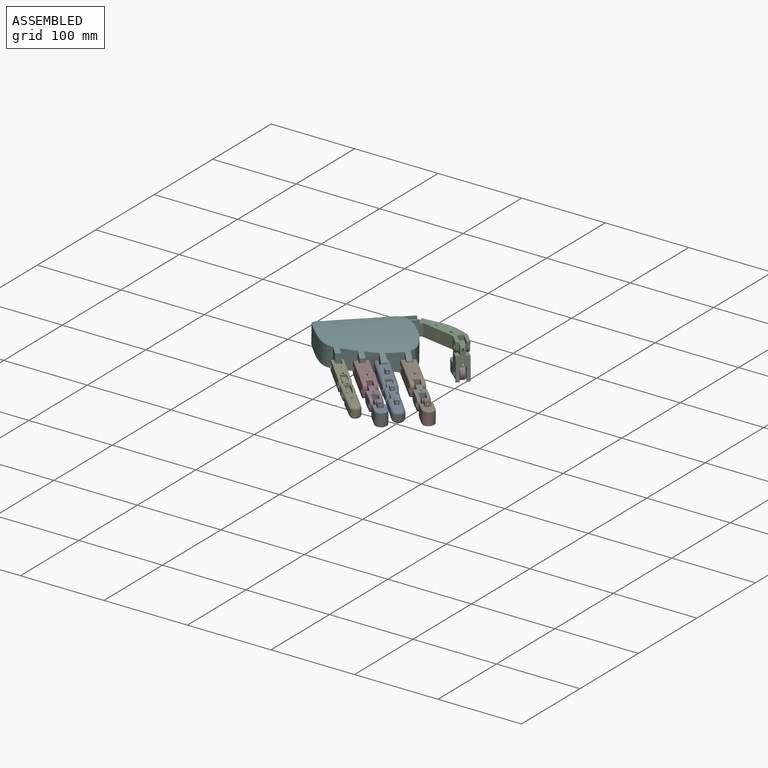
[diagram: assembled view]
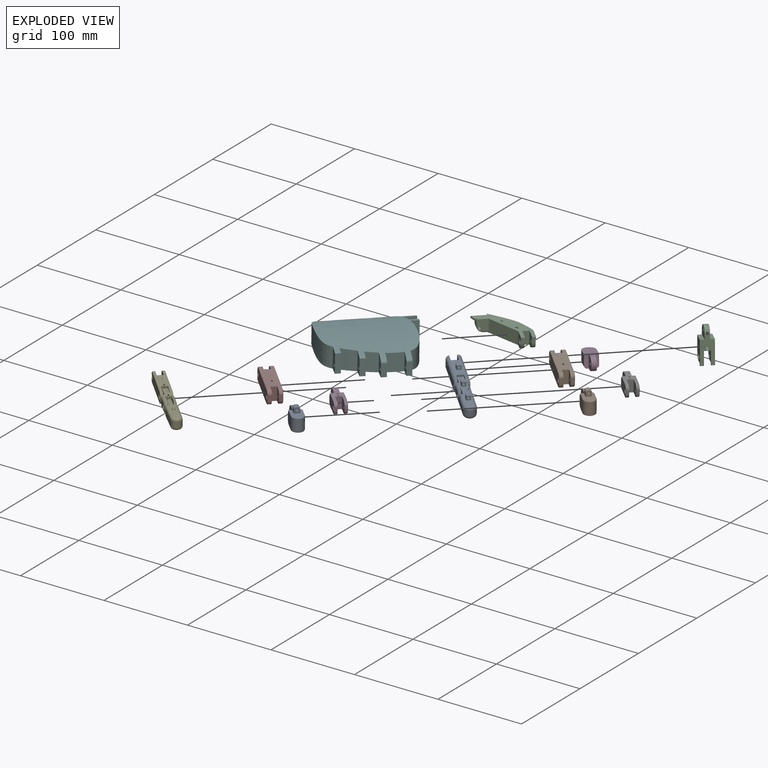
[diagram: exploded view]
GUIDED TOUR — MATED ASSEMBLY WITH SUBASSEMBLIES (Onshape document 58f4713bba5ead0ff602a4fa, AutoMate assembly 58f4713bba5ead0ff602a4fa_5b2b427a5dbaa598ef088df7_5e958202b57f63572089bb10_default)

This assembly has 16 component occurrences arranged in 12 top-level units: 10 individual components plus 2 subassemblies (S0, S1). The tour has two levels: first the top level, where each subassembly is treated as one rigid unit; then each subassembly is toured internally in its own section (nesting deeper than one subassembly level is flattened into its subassembly's section).

Components are labeled P0..P15 across the whole record; subassembly units are labeled S0..S1. A mate is a constraint between two units; its type names the relative motion it leaves free:
  REVOLUTE — leaves rotation about the listed axis free (a hinge).
Axis/direction vectors are unit vectors and 'through' points are millimeter coordinates, both in the assembly's world frame.

TOP-LEVEL MATES (between units; each subassembly's internal mates are listed in its own section)
  1. REVOLUTE "Revolute 3": P6 <-> P2, axis (-0.707, -0.707, 0.011) through (-216.11, -60.89, -3.54) mm
  2. REVOLUTE "Revolute 1": P9 <-> P14, axis (0.707, 0.707, -0.011) through (-218.39, -124.71, -5.03) mm
  3. REVOLUTE "Revolute 9": P3 <-> P4, axis (-0.707, -0.707, 0.008) through (-193.27, 8.58, -29.24) mm
  4. REVOLUTE "Revolute 1": P2 <-> P7, axis (0.707, 0.707, -0.011) through (-181.84, -95.89, -5.03) mm
  5. REVOLUTE "Revolute 4": P6 <-> P9, axis (0.707, 0.707, -0.011) through (-248.04, -85.13, -3.03) mm
  6. REVOLUTE "Revolute 5": S1 <-> P6, axis (0.707, 0.707, -0.011) through (-275.56, -99.13, -2.62) mm
  7. REVOLUTE "Revolute 2": P12 <-> P7, axis (-0.707, -0.707, 0.011) through (-156.74, -120.28, -5.03) mm
  8. REVOLUTE "Revolute 6": S0 <-> P6, axis (-0.707, -0.707, 0.011) through (-229.83, -74.61, -3.31) mm
  9. REVOLUTE "Revolute 2": P11 <-> P14, axis (-0.707, -0.707, 0.011) through (-193.29, -149.10, -5.03) mm
  10. REVOLUTE "Revolute 8": P13 <-> P3, axis (-0.707, -0.707, 0.008) through (-194.69, 10.30, -1.33) mm

TOP-LEVEL ASSEMBLY ORDER
  1. P6 — the base component [order heuristic]
  2. S0 — core [order heuristic]
  3. P14 [order verified]
  4. P13 — core [order heuristic]
  5. P4 — core [order heuristic]
  6. P9 — core [order heuristic]
  7. P2 — core [order heuristic]
  8. P3 — core [order heuristic]
  9. P11 [order verified]
  10. P12 [order verified]
  11. P7 [order verified]
  12. S1 — core [order heuristic]
Order-tag legend:
  [order verified] — this step's position reverses a verified removal order: the component was checked to insert without passing through the ones already placed.
  [order heuristic] — the first 8 components form the assembly's core: parts whose collision-free extraction could not be verified, listed in mate-graph order.

Of the 16 component occurrences, 3 carry the full construction recipe — the FeatureScript program that regenerates the part's solid from scratch; the rest are supplied as boundary geometry only. Each toured unit is shown spotlighted twice — assembled, then exploded with a leader line back to its socket (green = recipe-attached component, orange = geometry-only, blue = subassembly unit; the rest desaturated gray).
NOTE — document 2 of 2 of this assembly tour. The two overview renders and the header above are repeated from document 1; the component sections below continue where the previous document stopped.
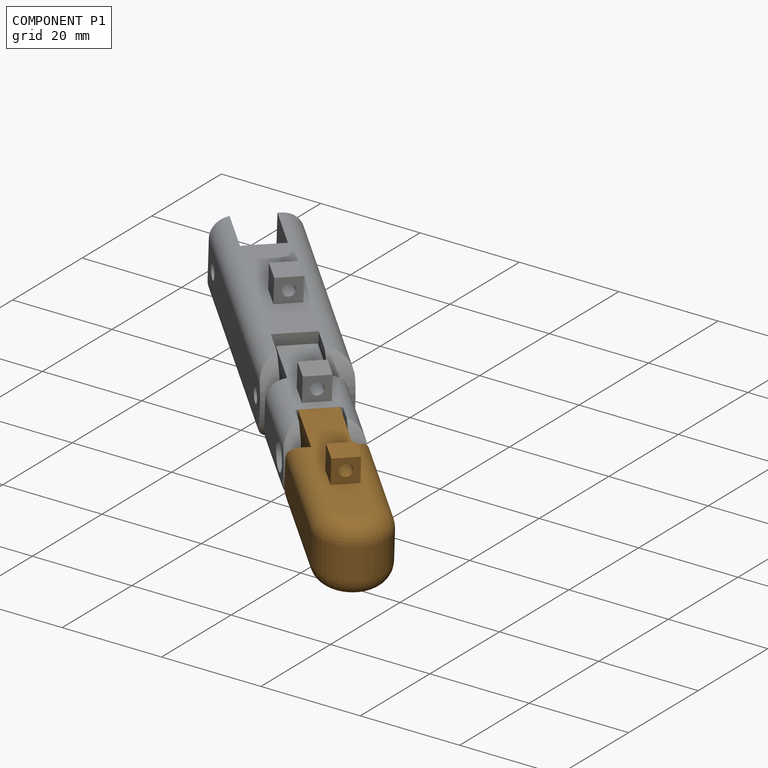
[diagram: component P1 — assembled]
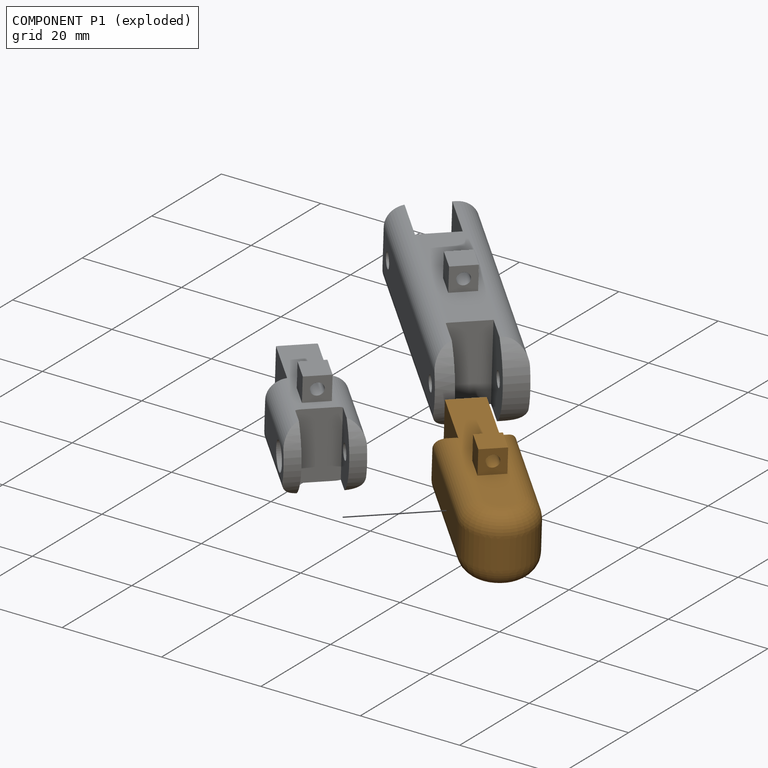
[diagram: component P1 — exploded]
COMPONENT P1 — geometry summary (no construction recipe available for this part):
  bounding box: 40.4 x 21.5 x 14.4 mm
  B-rep topology: 1 solid, 33 faces, 170 edges
  volume: 6172 mm^3 (50% of its bounding box)
Held by: REVOLUTE mate "Revolute 2" to P0; REVOLUTE mate "Revolute 2" to P0.
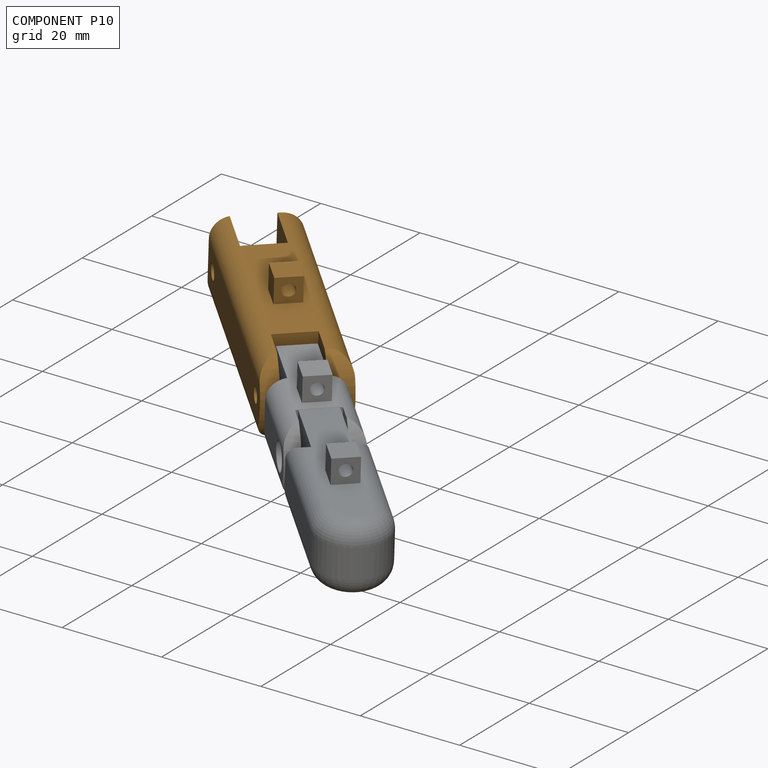
[diagram: component P10 — assembled]
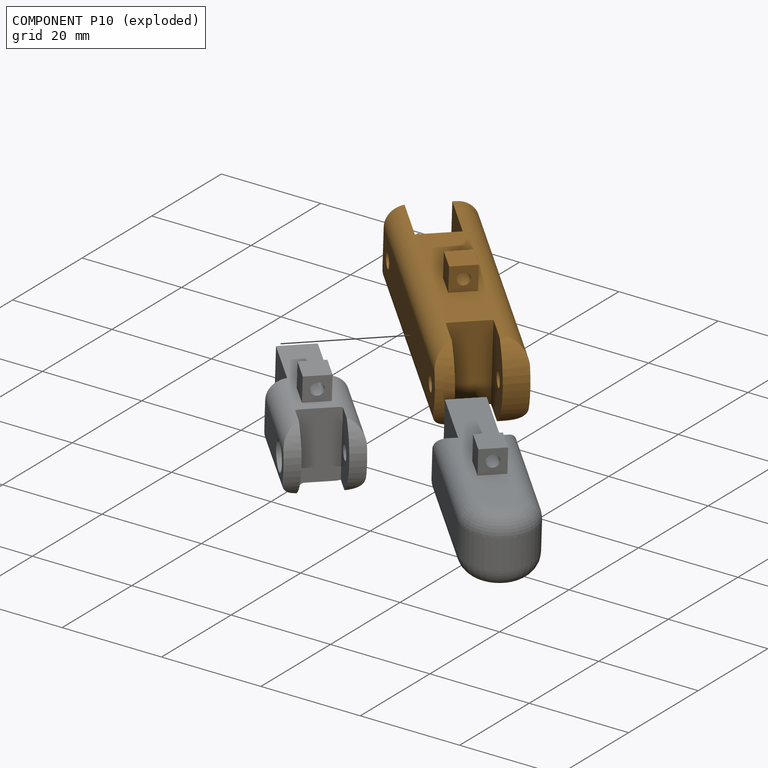
[diagram: component P10 — exploded]
COMPONENT P10 — geometry summary (no construction recipe available for this part):
  bounding box: 49.8 x 23.0 x 16.3 mm
  B-rep topology: 1 solid, 43 faces, 234 edges
  volume: 9137 mm^3 (49% of its bounding box)
Held by: REVOLUTE mate "Revolute 1" to P0; REVOLUTE mate "Revolute 1" to P0.
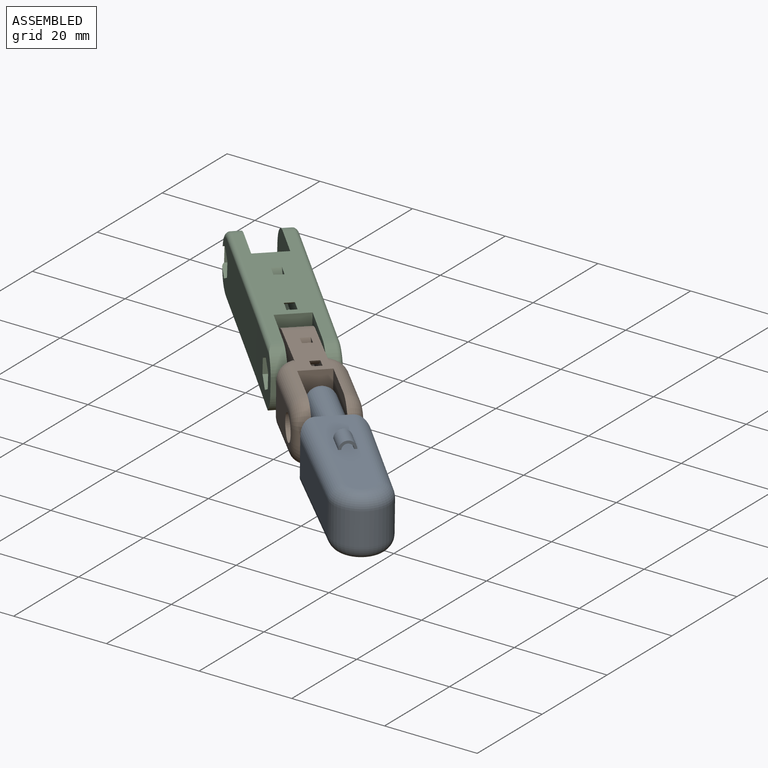
[diagram: subassembly S1 — assembled view]
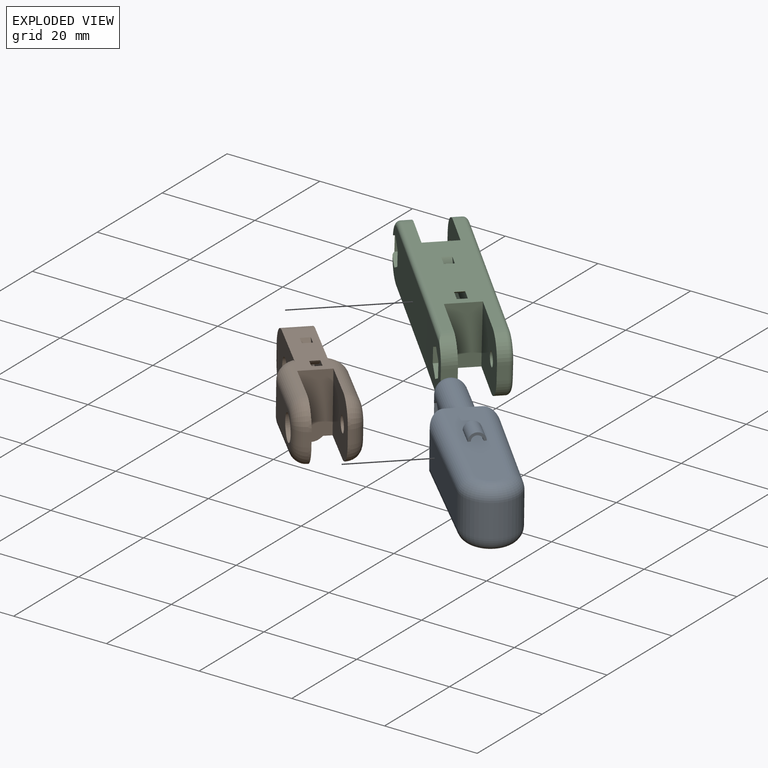
[diagram: subassembly S1 — exploded view]
SUBASSEMBLY S1 TOUR — 3 components, shown here in isolation at its own camera.

INTERNAL MATES
  1. REVOLUTE "Revolute 1": P8 <-> P15, axis (0.707, 0.707, -0.011) through (-241.90, -125.13, -5.03) mm
  2. REVOLUTE "Revolute 2": P5 <-> P8, axis (-0.707, -0.707, 0.011) through (-228.61, -144.25, -5.03) mm
  3. REVOLUTE "Revolute 2": P5 <-> P8, axis (-0.707, -0.707, 0.011) through (-228.61, -144.25, -5.03) mm
  4. REVOLUTE "Revolute 1": P8 <-> P15, axis (0.707, 0.707, -0.011) through (-241.90, -125.13, -5.03) mm

ASSEMBLY ORDER (within the subassembly)
  1. P8 — the base component [order heuristic]
  2. P5 [order heuristic]
  3. P15 [order heuristic]
Order-tag legend:
  [order heuristic] — this assembly is geometrically interlocked (no collision-free removal order exists), so components are listed in mate-graph order; insertion feasibility is not verified.
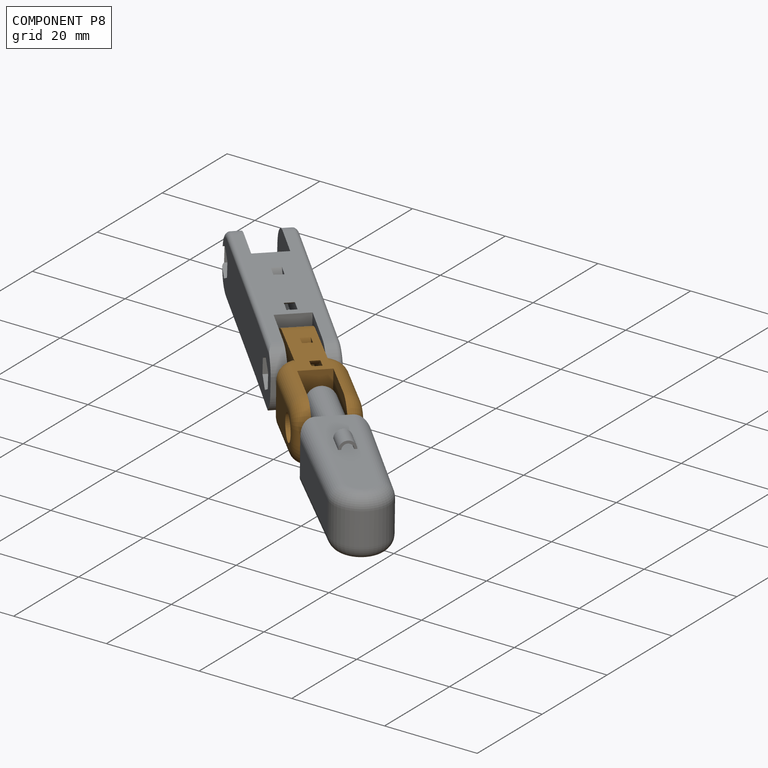
[diagram: component P8 — assembled]
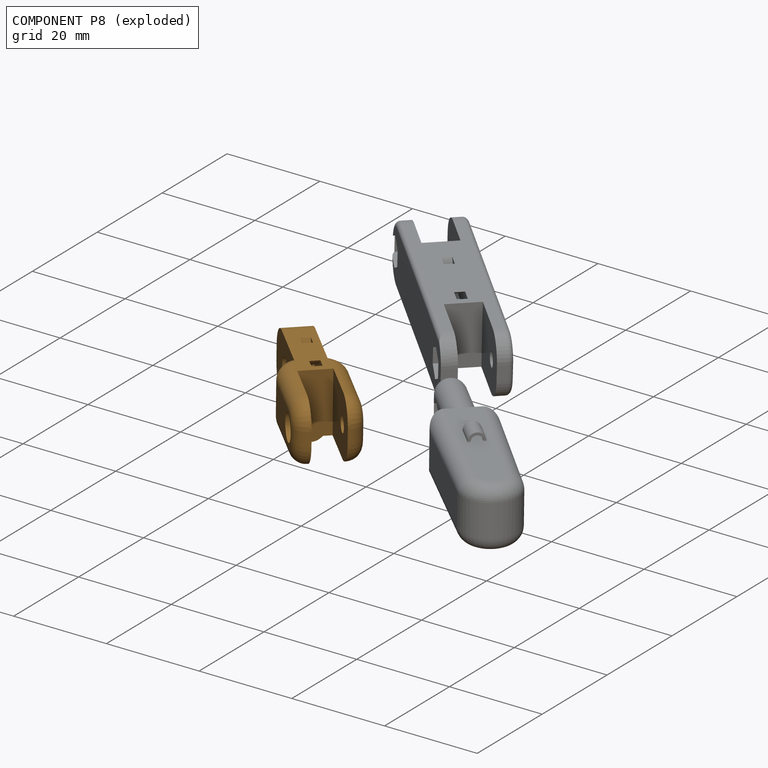
[diagram: component P8 — exploded]
COMPONENT P8 — geometry summary (no construction recipe available for this part):
  bounding box: 37.0 x 15.8 x 13.0 mm
  B-rep topology: 1 solid, 63 faces, 336 edges
  volume: 2981 mm^3 (39% of its bounding box)
Held by: REVOLUTE mate "Revolute 1" to P15; REVOLUTE mate "Revolute 2" to P5; REVOLUTE mate "Revolute 2" to P5; REVOLUTE mate "Revolute 1" to P15.
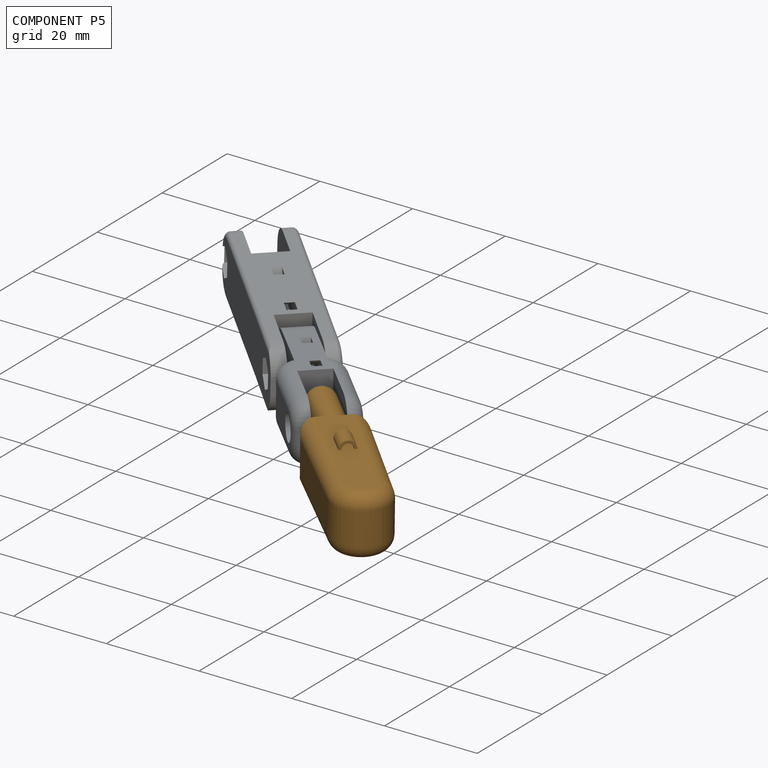
[diagram: component P5 — assembled]
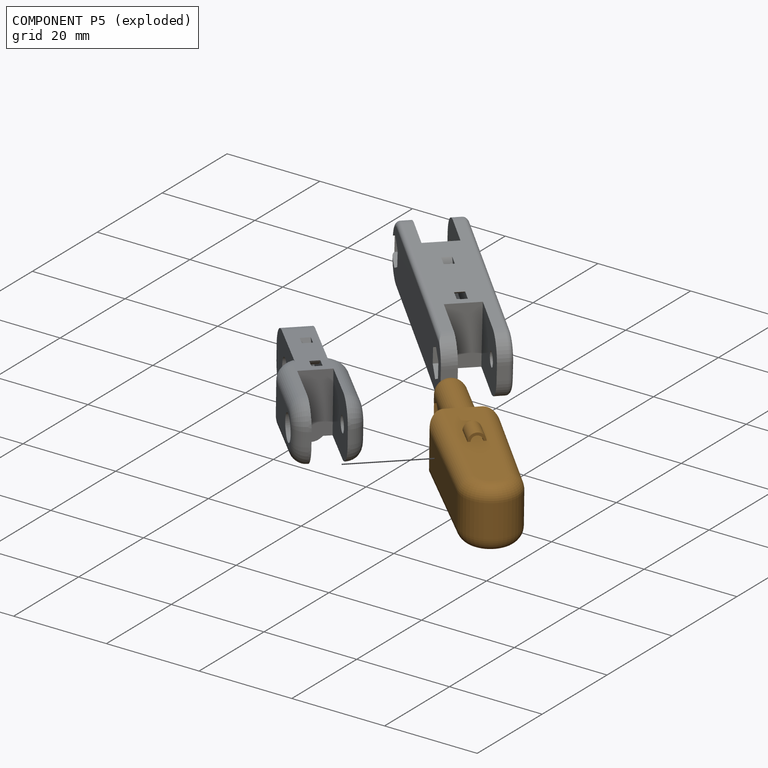
[diagram: component P5 — exploded]
COMPONENT P5 — geometry summary (no construction recipe available for this part):
  bounding box: 49.6 x 14.7 x 13.0 mm
  B-rep topology: 1 solid, 40 faces, 220 edges
  volume: 5834 mm^3 (61% of its bounding box)
  symmetry: mirror-symmetric across its x mid-plane
Held by: REVOLUTE mate "Revolute 2" to P8; REVOLUTE mate "Revolute 2" to P8.
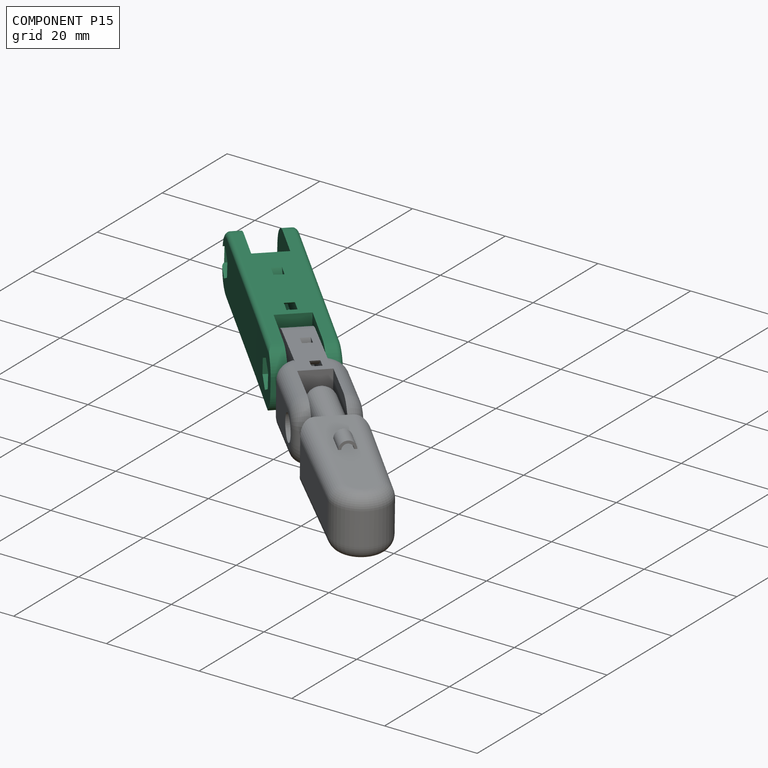
[diagram: component P15 — assembled]
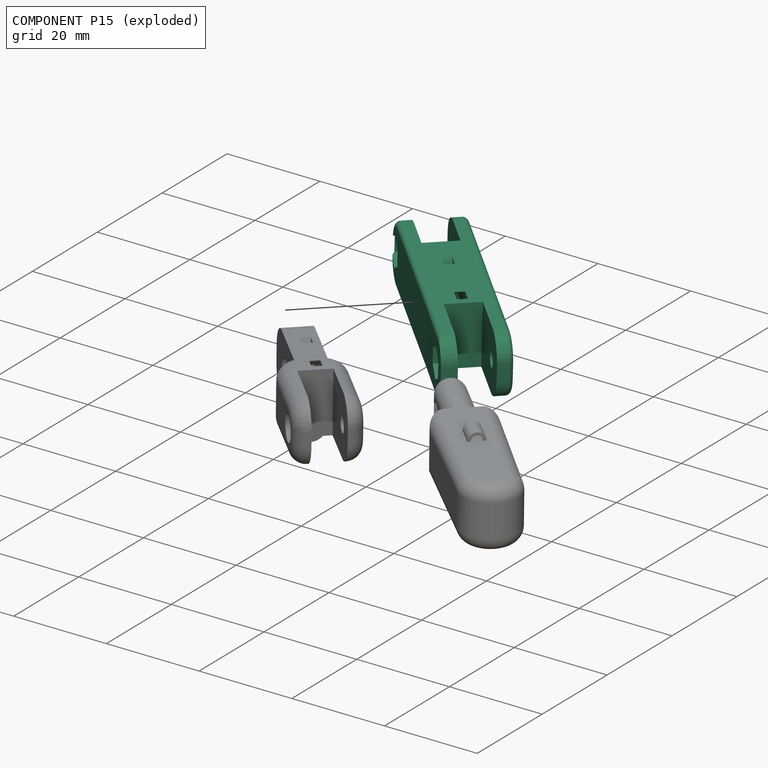
[diagram: component P15 — exploded]
COMPONENT P15 — recipe-attached (CADFS 00713742, mesh-verified: the recipe's output STEP matches this component's geometry to below the mesh-comparison resolution (tessellation chordal tolerance ~0.082 mm)).
Held by: REVOLUTE mate "Revolute 1" to P8; REVOLUTE mate "Revolute 1" to P8.
Construction recipe (FeatureScript — the CAD program that rebuilds this solid; sketch coordinates are in the units given by the * unit suffixes, e.g. mm):

FeatureScript 1511;
import(path : "onshape/std/geometry.fs", version : "1511.0");
import(path : "onshape/std/common.fs", version : "1511.0");
const mm = millimeter;
const VERTEX = EntityType.VERTEX;
const EDGE = EntityType.EDGE;
const FACE = EntityType.FACE;
const BODY = EntityType.BODY;
function v(x, y){return vector(x, y);}
function OD(order){return orderDisambiguation(order);}
function OSD(set){return originalSetDisambiguation(set);}
function TD(topology){return topologyDisambiguation(topology);}
function TDD(query){return trueDependencyDisambiguation(query);}
function sQuery(a, b, c) {return sketchEntityQuery(a, b, c);}

annotation { "Feature Type Name" : "Feature", "Feature Type Description" : "" }
export const myFeature = defineFeature(function(context is Context, id is Id, definition is map)
    precondition{}
    {
        {
            var Q0;
            Q0=qCreatedBy(makeId("Top.planeOp"),FACE);
            var sketch = newSketch(context, id + "F0", { "sketchPlane" : qUnion([Q0])});
            skLineSegment(sketch, "E0.bottom", {"start": v(-6.5, 7.54) * mm, "end": v(6.5, 7.54) * mm});
            skLineSegment(sketch, "E0.top", {"start": v(-6.5, -15.71) * mm, "end": v(6.5, -15.71) * mm});
            skLineSegment(sketch, "E0.left", {"start": v(-6.5, 7.54) * mm, "end": v(-6.5, -15.71) * mm});
            skLineSegment(sketch, "E0.right", {"start": v(6.5, 7.54) * mm, "end": v(6.5, -15.71) * mm});
            skLineSegment(sketch, "E1", {"start": v(-6.5, 7.54) * mm, "end": v(-6.5, 20.04) * mm});
            skLineSegment(sketch, "E2", {"start": v(-6.5, 20.04) * mm, "end": v(-3.5, 20.04) * mm});
            skLineSegment(sketch, "E3", {"start": v(-3.5, 20.04) * mm, "end": v(-3.5, 7.54) * mm});
            skPoint(sketch, "E3.endSnap0", {"position": v(0, 7.54) * mm});
            skLineSegment(sketch, "E4", {"start": v(-3.5, 7.54) * mm, "end": v(3.5, 7.54) * mm});
            skLineSegment(sketch, "E5", {"start": v(3.5, 7.54) * mm, "end": v(3.5, 20.04) * mm});
            skLineSegment(sketch, "E6", {"start": v(3.5, 20.04) * mm, "end": v(6.5, 20.04) * mm});
            skLineSegment(sketch, "E7", {"start": v(6.5, 20.04) * mm, "end": v(6.5, 7.54) * mm});
            skLineSegment(sketch, "E8", {"start": v(-6.5, -15.71) * mm, "end": v(-6.5, -30.71) * mm});
            skLineSegment(sketch, "E9", {"start": v(-6.5, -30.71) * mm, "end": v(-3.44, -30.71) * mm});
            skLineSegment(sketch, "E10", {"start": v(-3.44, -30.71) * mm, "end": v(-3.44, -15.71) * mm});
            skLineSegment(sketch, "E11", {"start": v(-3.44, -15.71) * mm, "end": v(3.56, -15.71) * mm});
            skLineSegment(sketch, "E12", {"start": v(3.56, -15.71) * mm, "end": v(3.56, -30.71) * mm});
            skLineSegment(sketch, "E13", {"start": v(3.56, -30.71) * mm, "end": v(6.62, -30.71) * mm});
            skLineSegment(sketch, "E14", {"start": v(6.62, -30.71) * mm, "end": v(6.5, -15.71) * mm});
            skPoint(sketch, "E15", {"position": v(-6.5, -23.21) * mm});
            skPoint(sketch, "E16", {"position": v(-6.5, 13.79) * mm});
            skSolve(sketch);
        }
        {
            var Q0;
            {var subQ3=sQuery(id+"F0.wireOp",EDGE,"E0.left");Q0=makeQuery(id+"F0.imprint","IMPRINT",FACE,{"disambiguationData":[TD([[makeQuery(id+"F0.imprint","IMPRINT",EDGE,{"derivedFrom":subQ3}),1.0]])]});}
            var Q1;
            {var subQ0=sQuery(id+"F0.wireOp",EDGE,"E1");Q1=makeQuery(id+"F0.imprint","IMPRINT",FACE,{"disambiguationData":[TD([[makeQuery(id+"F0.imprint","IMPRINT",EDGE,{"derivedFrom":subQ0}),-1.0]])]});}
            var Q2;
            {var subQ2=sQuery(id+"F0.wireOp",EDGE,"E5");Q2=makeQuery(id+"F0.imprint","IMPRINT",FACE,{"disambiguationData":[TD([[makeQuery(id+"F0.imprint","IMPRINT",EDGE,{"derivedFrom":subQ2}),-1.0]])]});}
            var Q3;
            {var subQ0=sQuery(id+"F0.wireOp",EDGE,"E8");Q3=makeQuery(id+"F0.imprint","IMPRINT",FACE,{"disambiguationData":[TD([[makeQuery(id+"F0.imprint","IMPRINT",EDGE,{"derivedFrom":subQ0}),1.0]])]});}
            var Q4;
            {var subQ2=sQuery(id+"F0.wireOp",EDGE,"E12");Q4=makeQuery(id+"F0.imprint","IMPRINT",FACE,{"disambiguationData":[TD([[makeQuery(id+"F0.imprint","IMPRINT",EDGE,{"derivedFrom":subQ2}),1.0]])]});}
            extrude(context, id + "F1", {"entities" : qUnion([Q0, Q1, Q2, Q3, Q4]), "depth" : 13 * mm});
        }
        {
            var Q0;
            Q0=makeQuery(id+"F1.opExtrude","CAP_EDGE",EDGE,{"disambiguationData":[OSD([sQuery(id+"F0.wireOp",EDGE,"E13")])],"isStart":true});
            var Q1;
            Q1=makeQuery(id+"F1.opExtrude","CAP_EDGE",EDGE,{"disambiguationData":[OSD([sQuery(id+"F0.wireOp",EDGE,"E13")])],"isStart":false});
            var Q2;
            Q2=makeQuery(id+"F1.opExtrude","CAP_EDGE",EDGE,{"disambiguationData":[OSD([sQuery(id+"F0.wireOp",EDGE,"E9")])],"isStart":false});
            var Q3;
            Q3=makeQuery(id+"F1.opExtrude","CAP_EDGE",EDGE,{"disambiguationData":[OSD([sQuery(id+"F0.wireOp",EDGE,"E9")])],"isStart":true});
            var Q4;
            Q4=makeQuery(id+"F1.opExtrude","CAP_EDGE",EDGE,{"disambiguationData":[OSD([sQuery(id+"F0.wireOp",EDGE,"E2")])],"isStart":false});
            var Q5;
            Q5=makeQuery(id+"F1.opExtrude","CAP_EDGE",EDGE,{"disambiguationData":[OSD([sQuery(id+"F0.wireOp",EDGE,"E2")])],"isStart":true});
            var Q6;
            Q6=makeQuery(id+"F1.opExtrude","CAP_EDGE",EDGE,{"disambiguationData":[OSD([sQuery(id+"F0.wireOp",EDGE,"E6")])],"isStart":false});
            var Q7;
            Q7=makeQuery(id+"F1.opExtrude","CAP_EDGE",EDGE,{"disambiguationData":[OSD([sQuery(id+"F0.wireOp",EDGE,"E6")])],"isStart":true});
            fillet(context, id + "F2", {"entities" : qUnion([Q0, Q1, Q2, Q3, Q4, Q5, Q6, Q7]), "radius" : 5 * mm, "tangentPropagation" : true, "allowEdgeOverflow" : false});
        }
        {
            var Q0;
            Q0=qCreatedBy(makeId("Right.planeOp"),FACE);
            var sketch = newSketch(context, id + "F3", { "sketchPlane" : qUnion([Q0])});
            skPoint(sketch, "E17", {"position": v(20.54, 6.5) * mm});
            skPoint(sketch, "E18", {"position": v(17.04, 0.13) * mm});
            skCircle(sketch, "E19", {"center": v(17.04, 6.5) * mm, "radius": 1.5 * mm});
            skCircle(sketch, "E20.MirrorC", {"center": v(-25.21, 6.5) * mm, "radius": 1.5 * mm});
            skPoint(sketch, "E21.orphan", {"position": v(20.54, 0.13) * mm});
            skPoint(sketch, "E22.0.2.start.orphan", {"position": v(13.54, 0.13) * mm});
            skPoint(sketch, "E22.0.3.end.orphan", {"position": v(20.54, 12.87) * mm});
            skPoint(sketch, "E22.0.3.start.orphan", {"position": v(14.29, 12.87) * mm});
            skPoint(sketch, "E23", {"position": v(0, 13.07) * mm});
            skSolve(sketch);
        }
        {
            var Q0;
            Q0=makeQuery(id+"F3.imprint","IMPRINT",FACE,{"disambiguationData":[TD([[makeQuery(id+"F3.imprint","IMPRINT",EDGE,{"derivedFrom":sQuery(id+"F3.wireOp",EDGE,"E19")}),1.0]])]});
            var Q1;
            Q1=makeQuery(id+"F3.imprint","IMPRINT",FACE,{"disambiguationData":[TD([[makeQuery(id+"F3.imprint","IMPRINT",EDGE,{"derivedFrom":sQuery(id+"F3.wireOp",EDGE,"E20.MirrorC")}),-1.0]])]});
            var Q2;
            Q2=sQuery(id+"F3.wireOp",EDGE,"E19");
            extrude(context, id + "F4", {"entities" : qUnion([Q0, Q1]), "operationType" : NewBodyOperationType.REMOVE, "surfaceEntities" : qUnion([Q2]), "endBound" : BoundingType.SYMMETRIC, "depth" : 54 * mm});
        }
        {
            var Q0;
            Q0=qSketchRegion(id+"F3",true);
            extrude(context, id + "F5", {"entities" : qUnion([Q0]), "operationType" : NewBodyOperationType.REMOVE, "endBound" : BoundingType.SYMMETRIC, "oppositeDirection" : true, "depth" : 25 * mm});
        }
        {
            var Q0;
            Q0=makeQuery(id+"F1.opExtrude","SWEPT_FACE",FACE,{"disambiguationData":[OSD([sQuery(id+"F0.wireOp",EDGE,"E0.left"),sQuery(id+"F0.wireOp",EDGE,"E1"),sQuery(id+"F0.wireOp",EDGE,"E8")])]});
            var sketch = newSketch(context, id + "F6", { "sketchPlane" : qUnion([Q0])});
            skCircle(sketch, "E24", {"center": v(25.21, 6.5) * mm, "radius": 2.85 * mm});
            skCircle(sketch, "E25", {"center": v(-17.04, 6.5) * mm, "radius": 2.85 * mm});
            skSolve(sketch);
        }
        {
            var Q0;
            Q0=qSketchRegion(id+"F6",true);
            extrude(context, id + "F7", {"entities" : qUnion([Q0]), "operationType" : NewBodyOperationType.REMOVE, "oppositeDirection" : true, "depth" : 1 * mm});
        }
        {
            var Q0;
            Q0=makeQuery(id+"F1.opExtrude","SWEPT_FACE",FACE,{"disambiguationData":[OSD([sQuery(id+"F0.wireOp",EDGE,"E0.right"),sQuery(id+"F0.wireOp",EDGE,"E7"),sQuery(id+"F0.wireOp",EDGE,"E14")])]});
            var sketch = newSketch(context, id + "F8", { "sketchPlane" : qUnion([Q0])});
            skCircle(sketch, "E26.cCircle", {"center": v(-25.21, 6.5) * mm, "radius": 2.85 * mm, "construction": true});
            skLineSegment(sketch, "E26.0", {"start": v(-28.06, 8.15) * mm, "end": v(-25.21, 9.8) * mm});
            skLineSegment(sketch, "E26.1", {"start": v(-25.21, 9.8) * mm, "end": v(-22.36, 8.15) * mm});
            skLineSegment(sketch, "E26.2", {"start": v(-22.36, 8.15) * mm, "end": v(-22.36, 4.85) * mm});
            skLineSegment(sketch, "E26.3", {"start": v(-22.36, 4.85) * mm, "end": v(-25.21, 3.2) * mm});
            skLineSegment(sketch, "E26.4", {"start": v(-25.21, 3.2) * mm, "end": v(-28.06, 4.85) * mm});
            skLineSegment(sketch, "E26.5", {"start": v(-28.06, 4.85) * mm, "end": v(-28.06, 8.15) * mm});
            skPoint(sketch, "E26.0.midPoint", {"position": v(-26.64, 8.97) * mm});
            skCircle(sketch, "E27.cCircle", {"center": v(17.04, 6.5) * mm, "radius": 2.85 * mm, "construction": true});
            skLineSegment(sketch, "E27.0", {"start": v(14.19, 8.15) * mm, "end": v(17.04, 9.8) * mm});
            skLineSegment(sketch, "E27.1", {"start": v(17.04, 9.8) * mm, "end": v(19.89, 8.15) * mm});
            skLineSegment(sketch, "E27.2", {"start": v(19.89, 8.15) * mm, "end": v(19.89, 4.85) * mm});
            skLineSegment(sketch, "E27.3", {"start": v(19.89, 4.85) * mm, "end": v(17.04, 3.2) * mm});
            skLineSegment(sketch, "E27.4", {"start": v(17.04, 3.2) * mm, "end": v(14.19, 4.85) * mm});
            skLineSegment(sketch, "E27.5", {"start": v(14.19, 4.85) * mm, "end": v(14.19, 8.15) * mm});
            skPoint(sketch, "E27.0.midPoint", {"position": v(15.61, 8.97) * mm});
            skSolve(sketch);
        }
        {
            var Q0;
            Q0=makeQuery(id+"F8.imprint","IMPRINT",FACE,{"disambiguationData":[TD([[makeQuery(id+"F8.imprint","IMPRINT",EDGE,{"derivedFrom":sQuery(id+"F8.wireOp",EDGE,"E26.0")}),-1.0]])]});
            var Q1;
            Q1=makeQuery(id+"F8.imprint","IMPRINT",FACE,{"disambiguationData":[TD([[makeQuery(id+"F8.imprint","IMPRINT",EDGE,{"derivedFrom":sQuery(id+"F8.wireOp",EDGE,"E27.0")}),-1.0]])]});
            extrude(context, id + "F9", {"entities" : qUnion([Q0, Q1]), "operationType" : NewBodyOperationType.REMOVE, "oppositeDirection" : true, "depth" : 1.2 * mm});
        }
        {
            var Q0;
            Q0=qSketchRegion(id+"F6",true);
            extrude(context, id + "F10", {"entities" : qUnion([Q0]), "operationType" : NewBodyOperationType.REMOVE, "oppositeDirection" : true, "depth" : 1 * mm});
        }
        {
            var Q0;
            Q0=qSketchRegion(id+"F8",true);
            extrude(context, id + "F11", {"entities" : qUnion([Q0]), "operationType" : NewBodyOperationType.REMOVE, "oppositeDirection" : true, "depth" : 1 * mm});
        }
        {
            var Q0;
            Q0=makeQuery(id+"F1.opExtrude","CAP_EDGE",EDGE,{"disambiguationData":[OSD([sQuery(id+"F0.wireOp",EDGE,"E0.left"),sQuery(id+"F0.wireOp",EDGE,"E1"),sQuery(id+"F0.wireOp",EDGE,"E8")])],"isStart":true});
            var Q1;
            Q1=makeQuery(id+"F1.opExtrude","CAP_EDGE",EDGE,{"disambiguationData":[OSD([sQuery(id+"F0.wireOp",EDGE,"E0.right"),sQuery(id+"F0.wireOp",EDGE,"E7"),sQuery(id+"F0.wireOp",EDGE,"E14")])],"isStart":true});
            fillet(context, id + "F12", {"entities" : qUnion([Q0, Q1]), "radius" : 1 * mm, "tangentPropagation" : true, "allowEdgeOverflow" : false});
        }
        {
            var Q0;
            Q0=qCreatedBy(makeId("Front.planeOp"),FACE);
            var sketch = newSketch(context, id + "F13", { "sketchPlane" : qUnion([Q0])});
            skArc(sketch, "E28", {"start": v(0.99, 13) * mm, "mid": v(0, 13.99) * mm, "end": v(-0.99, 13) * mm});
            skArc(sketch, "E29", {"start": v(2.49, 13) * mm, "mid": v(0, 15.49) * mm, "end": v(-2.49, 13) * mm});
            skLineSegment(sketch, "E30", {"start": v(-2.49, 13) * mm, "end": v(-0.99, 13) * mm});
            skLineSegment(sketch, "E31", {"start": v(0.99, 13) * mm, "end": v(2.49, 13) * mm});
            skArc(sketch, "E32", {"start": v(-2.49, 0) * mm, "mid": v(0, -4.1) * mm, "end": v(2.49, 0) * mm});
            skArc(sketch, "E33", {"start": v(-0.99, 0) * mm, "mid": v(0, -0.98) * mm, "end": v(0.99, 0) * mm});
            skLineSegment(sketch, "E34", {"start": v(0.99, 0) * mm, "end": v(2.49, 0) * mm});
            skLineSegment(sketch, "E35", {"start": v(-0.99, 0) * mm, "end": v(-2.49, 0) * mm});
            skSolve(sketch);
        }
        {
            var Q0;
            Q0=makeQuery(id+"F13.imprint","IMPRINT",FACE,{"disambiguationData":[TD([[makeQuery(id+"F13.imprint","IMPRINT",EDGE,{"derivedFrom":sQuery(id+"F13.wireOp",EDGE,"E28")}),-1.0]])]});
            var Q1;
            Q1=makeQuery(id+"F13.imprint","IMPRINT",FACE,{"disambiguationData":[TD([[makeQuery(id+"F13.imprint","IMPRINT",EDGE,{"derivedFrom":sQuery(id+"F13.wireOp",EDGE,"E32")}),1.0]])]});
            extrude(context, id + "F14", {"entities" : qUnion([Q0, Q1]), "operationType" : NewBodyOperationType.ADD, "endBound" : BoundingType.SYMMETRIC, "depth" : 5 * mm});
        }
        {
            var Q0;
            Q0=makeQuery(id+"F8.imprint","IMPRINT",FACE,{"disambiguationData":[TD([[makeQuery(id+"F8.imprint","IMPRINT",EDGE,{"derivedFrom":sQuery(id+"F8.wireOp",EDGE,"E26.0")}),-1.0]])]});
            extrude(context, id + "F15", {"entities" : qUnion([Q0]), "operationType" : NewBodyOperationType.REMOVE, "depth" : 1.2 * mm});
        }
        {
            var Q0;
            Q0=makeQuery(id+"F14.opExtrude","CAP_FACE",FACE,{"disambiguationData":[OSD([sQuery(id+"F13.wireOp",EDGE,"E32"),sQuery(id+"F13.wireOp",EDGE,"E33"),sQuery(id+"F13.wireOp",EDGE,"E34"),sQuery(id+"F13.wireOp",EDGE,"E35")])],"isStart":true});
            var sketch = newSketch(context, id + "F16", { "sketchPlane" : qUnion([Q0])});
            skArc(sketch, "E36.0", {"start": v(2.49, 0) * mm, "mid": v(0, -4.1) * mm, "end": v(-2.49, 0) * mm});
            skArc(sketch, "E37.0.0", {"start": v(0.99, 0) * mm, "mid": v(0, -0.98) * mm, "end": v(-0.99, 0) * mm});
            skLineSegment(sketch, "E37.0.1", {"start": v(-0.99, 0) * mm, "end": v(-2.49, 0) * mm});
            skArc(sketch, "E37.0.2", {"start": v(-2.49, 0) * mm, "mid": v(0, -4.1) * mm, "end": v(2.49, 0) * mm});
            skLineSegment(sketch, "E37.0.3", {"start": v(2.49, 0) * mm, "end": v(0.99, 0) * mm});
            skSolve(sketch);
        }
        {
            var Q0;
            Q0=makeQuery(id+"F16.imprint","IMPRINT",FACE,{"disambiguationData":[TD([[makeQuery(id+"F16.imprint","IMPRINT",EDGE,{"derivedFrom":sQuery(id+"F16.wireOp",EDGE,"E37.0.0")}),1.0]])]});
            extrude(context, id + "F17", {"entities" : qUnion([Q0]), "operationType" : NewBodyOperationType.REMOVE, "endBound" : BoundingType.THROUGH_ALL, "oppositeDirection" : true, "depth" : 25 * mm});
        }
        {
            var Q0;
            Q0=qCreatedBy(makeId("Right.planeOp"),FACE);
            var sketch = newSketch(context, id + "F18", { "sketchPlane" : qUnion([Q0])});
            skArc(sketch, "E38", {"start": v(1.78, 0) * mm, "mid": v(-6.22, 4) * mm, "end": v(-14.22, 0) * mm});
            skArc(sketch, "E39", {"start": v(-0.93, 0) * mm, "mid": v(-6.22, 2) * mm, "end": v(-11.51, 0) * mm});
            skLineSegment(sketch, "E40", {"start": v(1.78, 0) * mm, "end": v(-0.93, 0) * mm});
            skLineSegment(sketch, "E41.trimOffspring", {"start": v(-11.51, 0) * mm, "end": v(-14.22, 0) * mm});
            skPoint(sketch, "E42.orphan", {"position": v(7.54, 0) * mm});
            skPoint(sketch, "E43.orphan", {"position": v(-15.71, 0) * mm});
            skSolve(sketch);
        }
        {
            var Q0;
            Q0=qSketchRegion(id+"F18",true);
            extrude(context, id + "F19", {"entities" : qUnion([Q0]), "operationType" : NewBodyOperationType.REMOVE, "endBound" : BoundingType.SYMMETRIC, "oppositeDirection" : true, "depth" : 2 * mm});
        }
    });
PROVENANCE & LICENSES
Assembly (occurrences, transforms, mates, per-part STEP geometry): AutoMate dataset, Zenodo record 7776208, CC0.
Construction recipes: CADFS (HuggingFace VladPyatov/CADFS, CC-BY-4.0, layered over the ABC dataset), FeatureScript reconstruction programs keyed by ABC model id.
Join: ABC meta listings map ABC model id -> Onshape documentId; within a shared document, parts are matched by geometric signature (bounding-box dims + volume at 0.1% relative tolerance, exact B-rep face/solid counts).
Verification: 3 of this assembly's 16 components carry a recipe attachment, and every attachment is mesh-verified: the CADFS STEP and the AutoMate member STEP were compared as meshes in their shared local frame (symmetric sampled-point-to-mesh distance); worst across the 3 attachments: below the mesh-comparison resolution (tessellation chordal tolerance ~0.0957 mm) on a 64 mm part.
Renders: orthographic iso camera (az 35 / el 25); the floor grid conveys scale (grid pitch printed in each image; no ruler). In the exploded view each component is displaced by its stored offset vector: the offsets alone carry the explosion direction (mate normal/axis signs are not orientation cues and do not encode it), and separation distances are assigned per mate-chain, not proportionally to assembly-order depth.
